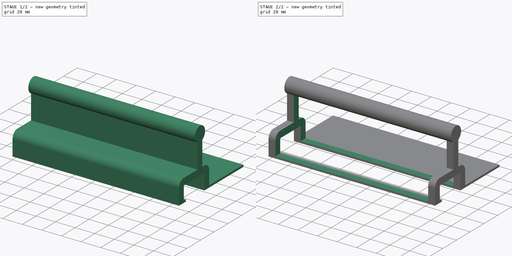
[diagram: build sequence overview — one tinted view per stage of 2, left to right]
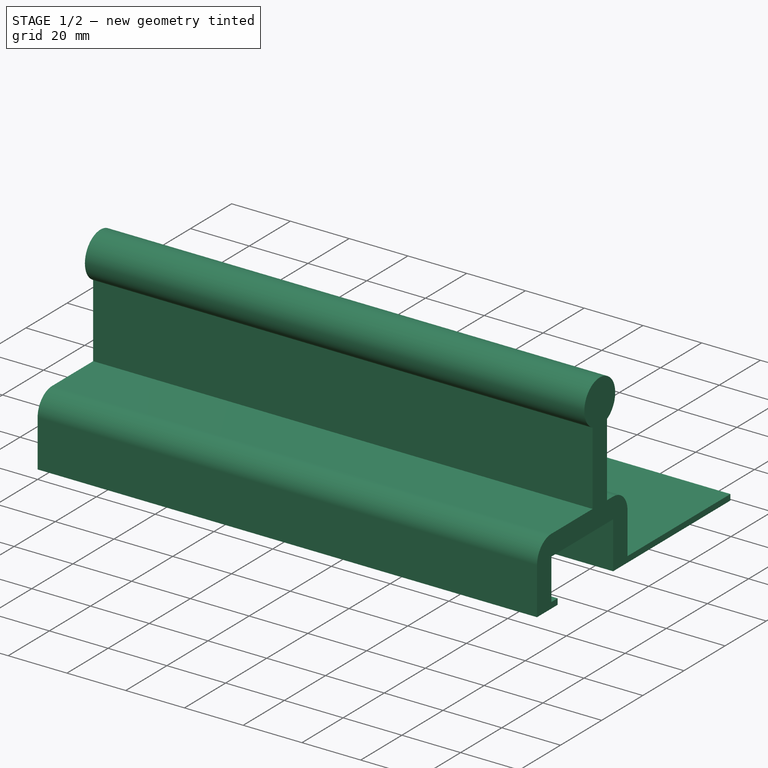
[diagram: stage 1 of 2 — iso view after this stage's code; geometry added in this stage tinted green]
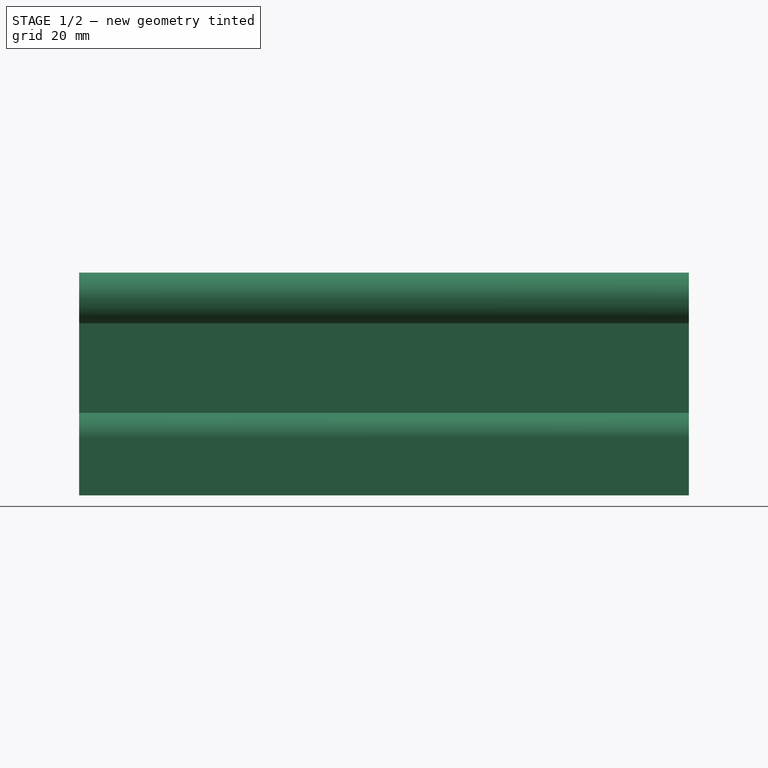
[diagram: stage 1 of 2 — front view after this stage's code; geometry added in this stage tinted green]
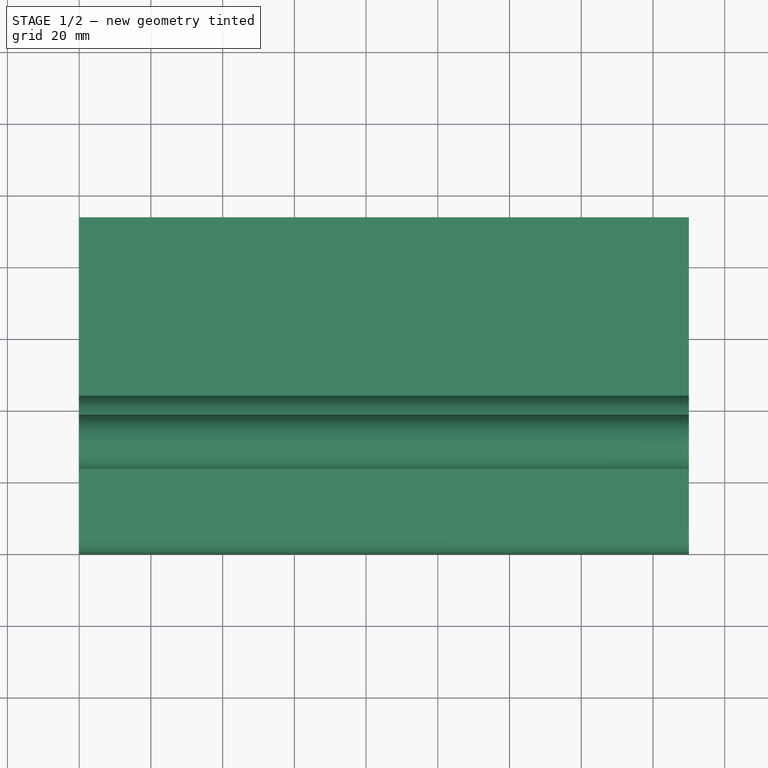
[diagram: stage 1 of 2 — top view after this stage's code; geometry added in this stage tinted green]
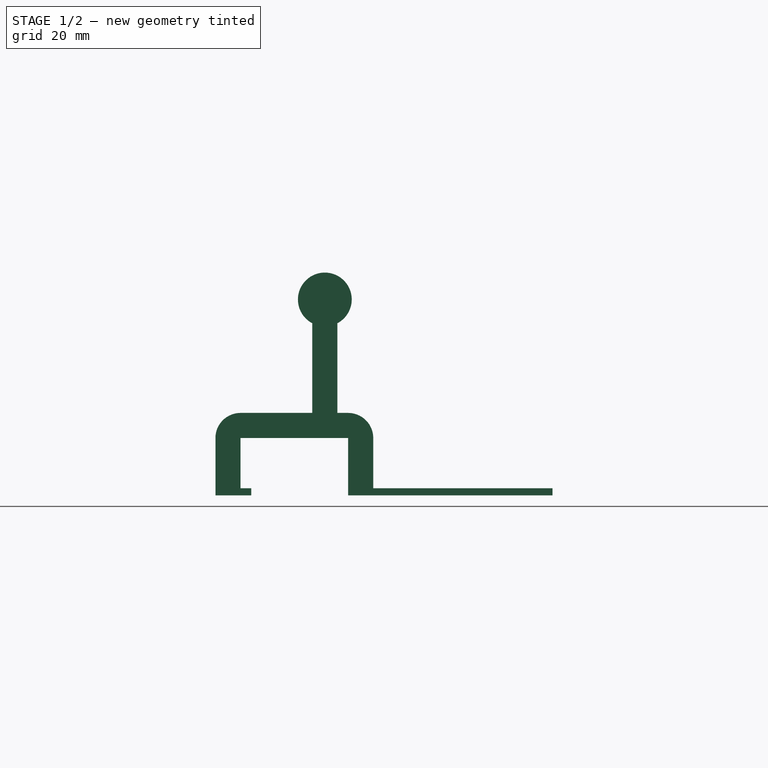
[diagram: stage 1 of 2 — right view after this stage's code; geometry added in this stage tinted green]
FCSTD DOCUMENT  (FreeCAD 1.0R38642 (Git))
Label: monitor-birdperch
License: All rights reserved
LicenseURL: http://en.wikipedia.org/wiki/All_rights_reserved
objects: Sketcher::SketchObject×2, Spreadsheet::Sheet×1, PartDesign::Pad×1, PartDesign::Pocket×1, PartDesign::Body×1
note: 11 computed .brp shape members not serialized (recipe doc carries the construction recipe); baked Part::Feature solids carry a one-line shape summary decoded from their .brp

FEATURE [Spreadsheet::Sheet] Spreadsheet  label="dimensions"
  cells = A1='monitor thickness; B1(monitor_thickness)==30 mm; A2='frame height; B2(frame_height)==19 mm; A3='perch width; B3(perch_width)==170 mm; A4='beam thickness; B4(beam_thickness)==7 mm; A5='stick diameter; B5(stick_diameter)==15 mm; A6='plateau size; B6(plateau_size)==50 mm; A7='perch height; B7(perch_height)==25 mm
FEATURE [Sketcher::SketchObject] Sketch
  ArcFitTolerance = 0
  AttachmentSupport = -> [YZ_Plane]
  FullyConstrained = true
  MakeInternals = false
  MapMode = 5
  Placement = pos=(0,0,0) rot=(0.57735,0.57735,0.57735;2.0944rad)
  expr: Constraints[29] = <<dimensions>>.monitor_thickness
  expr: Constraints[30] = 14 mm
  expr: Constraints[32] = <<dimensions>>.beam_thickness
  expr: Constraints[34] = <<dimensions>>.beam_thickness
  expr: Constraints[38] = <<dimensions>>.stick_diameter
  expr: Constraints[39] = <<dimensions>>.plateau_size
  expr: Constraints[47] = <<dimensions>>.beam_thickness
  expr: Constraints[50] = <<dimensions>>.perch_height
  sketch-geometry (19):
    g0: LineSegment StartX=7 StartY=0 StartZ=0 EndX=27 EndY=0 EndZ=0
    g1: LineSegment StartX=27 StartY=0 StartZ=0 EndX=27 EndY=25 EndZ=0
    g2: LineSegment StartX=34 StartY=25 StartZ=0 EndX=34 EndY=0 EndZ=0
    g3: LineSegment StartX=34 StartY=0 StartZ=0 EndX=37 EndY=0 EndZ=0
    g4: LineSegment StartX=44 StartY=-7 StartZ=0 EndX=44 EndY=-21 EndZ=0
    g5: LineSegment StartX=44 StartY=-21 StartZ=0 EndX=94 EndY=-21 EndZ=0
    g6: LineSegment StartX=94 StartY=-21 StartZ=0 EndX=94 EndY=-23 EndZ=0
    g7: LineSegment StartX=94 StartY=-23 StartZ=0 EndX=37 EndY=-23 EndZ=0
    g8: LineSegment StartX=37 StartY=-23 StartZ=0 EndX=37 EndY=-7 EndZ=0
    g9: LineSegment StartX=37 StartY=-7 StartZ=0 EndX=7 EndY=-7 EndZ=0
    g10: LineSegment StartX=7 StartY=-7 StartZ=0 EndX=7 EndY=-21 EndZ=0
    g11: LineSegment StartX=7 StartY=-21 StartZ=0 EndX=10 EndY=-21 EndZ=0
    g12: LineSegment StartX=10 StartY=-21 StartZ=0 EndX=10 EndY=-23 EndZ=0
    g13: ArcOfCircle CenterX=30.5 CenterY=31.6332 CenterZ=0 NormalX=0 NormalY=0 NormalZ=1 AngleXU=0 Radius=7.5 StartAngle=5.19791 EndAngle=10.5101
    g14: LineSegment StartX=10 StartY=-23 StartZ=0 EndX=0 EndY=-23 EndZ=0
    g15: LineSegment StartX=0 StartY=-23 StartZ=0 EndX=-2.4e-15 EndY=-7 EndZ=0
    g16: ArcOfCircle CenterX=37 CenterY=-7 CenterZ=0 NormalX=0 NormalY=0 NormalZ=1 AngleXU=0 Radius=7 StartAngle=0 EndAngle=1.5708
    g17: ArcOfCircle CenterX=7 CenterY=-7 CenterZ=0 NormalX=0 NormalY=0 NormalZ=1 AngleXU=0 Radius=7 StartAngle=1.5708 EndAngle=3.14159
    g18: GeomPoint [constr] X=30.5 Y=0 Z=0
  constraints (52):
    c: PointOnObject(g0,g-1)
    c: Coincident(g0,g1)
    c: Vertical(g1)
    c: PointOnObject(g2,g-1)
    c: Vertical(g2)
    c: Coincident(g2,g3)
    c: Vertical(g4)
    c: Coincident(g4,g5)
    c: Horizontal(g5)
    c: Coincident(g5,g6)
    c: Coincident(g6,g7)
    c: Horizontal(g7)
    c: Coincident(g7,g8)
    c: Vertical(g8)
    c: Coincident(g8,g9)
    c: Horizontal(g9)
    c: Coincident(g9,g10)
    c: Vertical(g10)
    c: Coincident(g10,g11)
    c: Coincident(g11,g12)
    c: Horizontal(g11)
    c: Vertical(g12)
    c: Vertical(g6)
    c: Horizontal(g12,g7)
    c: Coincident(g12,g14)
    c: PointOnObject(g14,g-2)
    c: Horizontal(g14)
    c: Coincident(g14,g15)
    c: Horizontal(g4,g11)
    c: DistanceX(g9,g9) = 30
    c: DistanceY(g10,g10) = 14
    c: DistanceY(g6,g6) = 2
    c: DistanceX(g14,g10) = 7
    c: DistanceX(g10,g11) = 3
    c: DistanceX(g7,g4) = 7
    c: Coincident(g13,g2)
    c: Coincident(g1,g13)
    c: Horizontal(g2,g1)
    c: Diameter(g13) = 15
    c: DistanceX(g5,g5) = 50
    c: Tangent(g4,g16) = 1.5708
    c: Tangent(g3,g16) = 1.5708
    c: Tangent(g0,g17) = 1.5708
    c: Tangent(g15,g17) = 1.5708
    c: PointOnObject(g3,g-1)
    c: PointOnObject(g0,g-1)
    c: Coincident(g16,g8)
    c: DistanceX(g0,g2) = 7
    c: Coincident(g17,g9)
    c: Symmetric(g2,g0,g18)
    c: DistanceY(g1,g1) = 25
    c: DistanceX(g2,g3) = 3
FEATURE [PartDesign::Pad] Pad
  Direction = (1,0,0)
  Length = 170
  Length2 = 10
  Placement = pos=(0,0,0) rot=(0.57735,0.57735,0.57735;2.0944rad)
  Profile = -> Sketch
  ReferenceAxis = -> Sketch [N_Axis]
  Suppressed = false
  Type = 0
  expr: Length = <<dimensions>>.perch_width
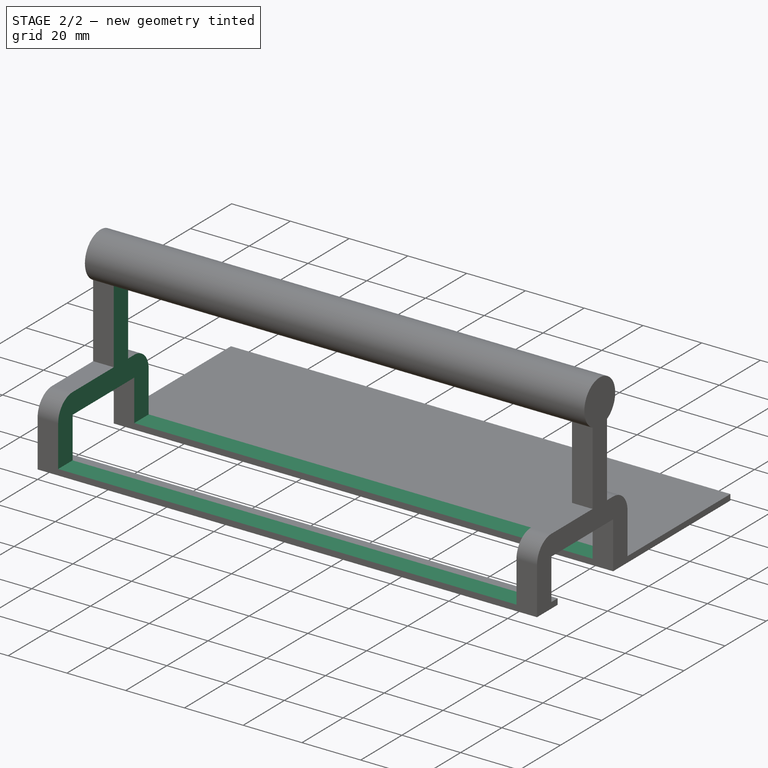
[diagram: stage 2 of 2 — iso view after this stage's code; geometry added in this stage tinted green]
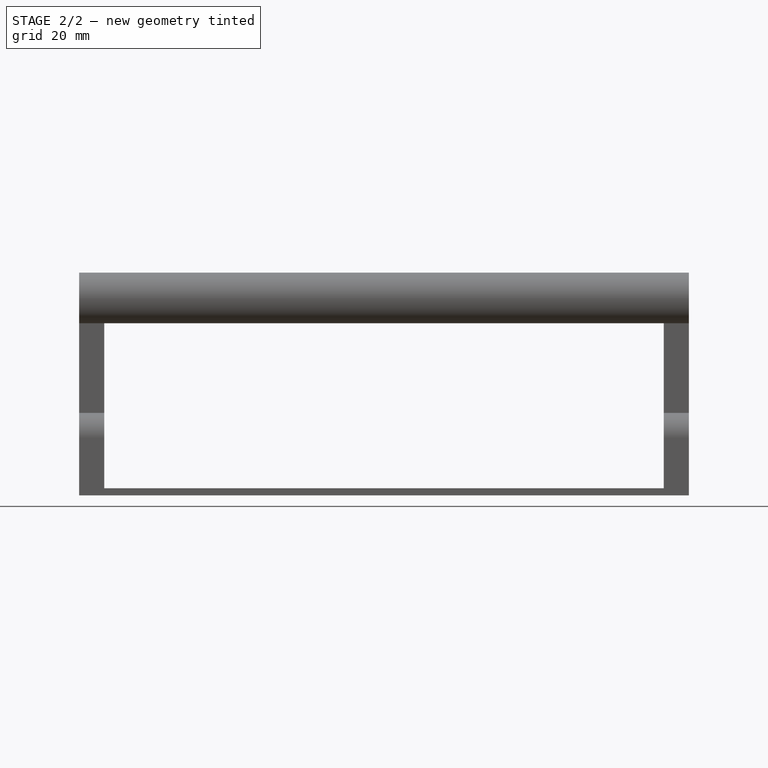
[diagram: stage 2 of 2 — front view after this stage's code; geometry added in this stage tinted green]
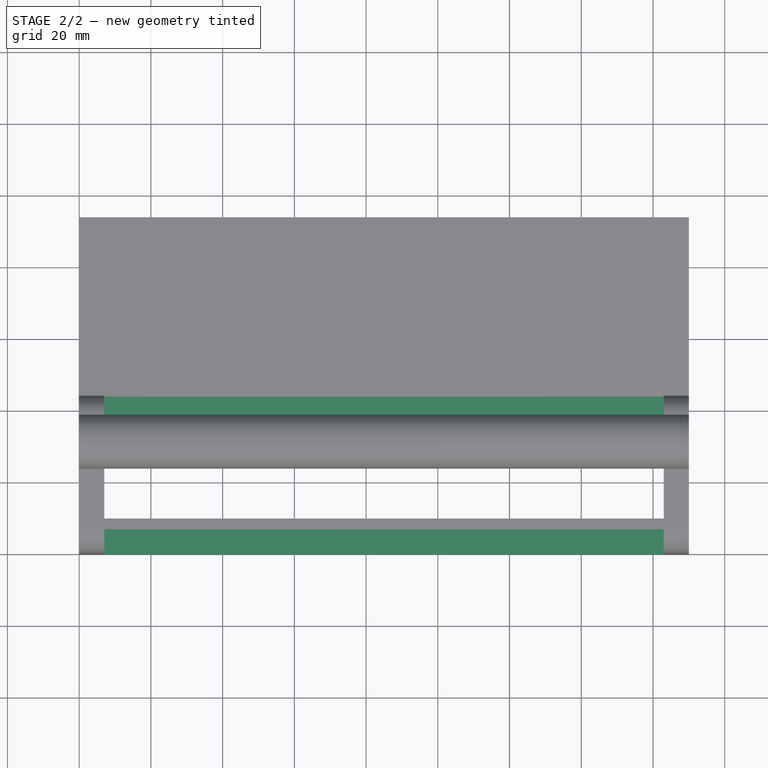
[diagram: stage 2 of 2 — top view after this stage's code; geometry added in this stage tinted green]
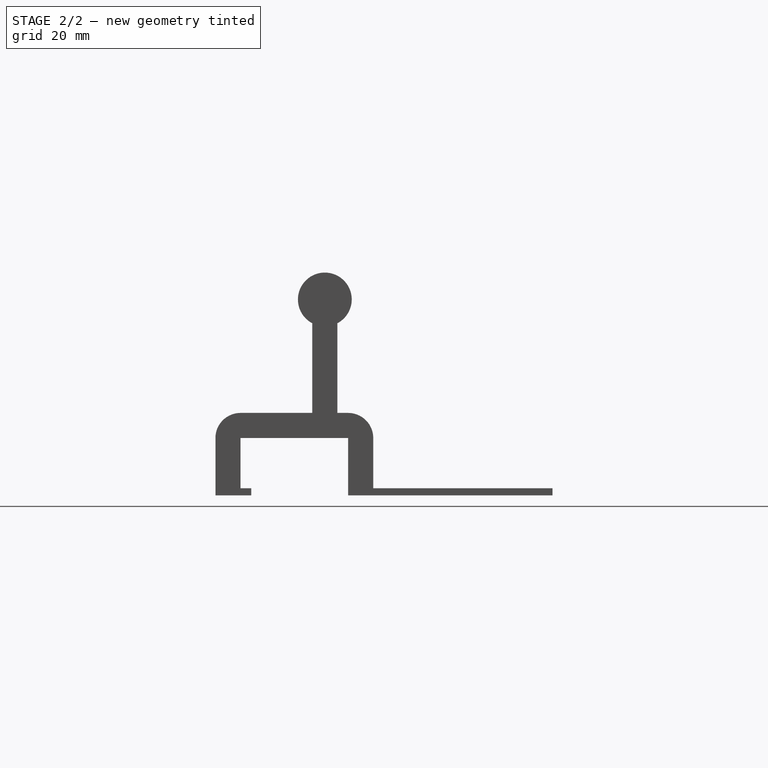
[diagram: stage 2 of 2 — right view after this stage's code; geometry added in this stage tinted green]
FEATURE [Sketcher::SketchObject] Sketch001
  ArcFitTolerance = 0
  AttachmentSupport = -> [Pad]
  ExternalGeometry = -> [Pad]
  FullyConstrained = true
  MakeInternals = false
  MapMode = 5
  Placement = pos=(9.8e-15,44,-4.9e-15) rot=(0.57735,0.57735,0.57735;4.18879rad)
  expr: Constraints[8] = <<dimensions>>.beam_thickness
  expr: Constraints[9] = <<dimensions>>.beam_thickness
  sketch-geometry (4):
    g0: LineSegment StartX=-21 StartY=163 StartZ=0 EndX=25 EndY=163 EndZ=0
    g1: LineSegment StartX=25 StartY=163 StartZ=0 EndX=25 EndY=7 EndZ=0
    g2: LineSegment StartX=25 StartY=7 StartZ=0 EndX=-21 EndY=7 EndZ=0
    g3: LineSegment StartX=-21 StartY=7 StartZ=0 EndX=-21 EndY=163 EndZ=0
  constraints (12):
    c: Coincident(g0,g1)
    c: Coincident(g1,g2)
    c: Coincident(g2,g3)
    c: Coincident(g3,g0)
    c: Horizontal(g0)
    c: Horizontal(g2)
    c: Vertical(g1)
    c: Vertical(g3)
    c: DistanceY(g-4,g1) = 7
    c: DistanceY(g0,g-3) = 7
    c: Vertical(g0,g-3)
    c: Vertical(g1,g-4)
FEATURE [PartDesign::Pocket] Pocket
  BaseFeature = -> Pad
  Direction = (0,-1,0)
  Length = 5
  Length2 = 5
  Placement = pos=(0,0,0) rot=(0.57735,0.57735,0.57735;2.0944rad)
  Profile = -> Sketch001
  ReferenceAxis = -> Sketch001 [N_Axis]
  Suppressed = false
  Type = 1
FEATURE [PartDesign::Body] Body  label="perch"
  AllowCompound = false
  Group = -> [Sketch,Pad,Sketch001,Pocket]
  Origin = -> Origin
  Tip = -> Pocket
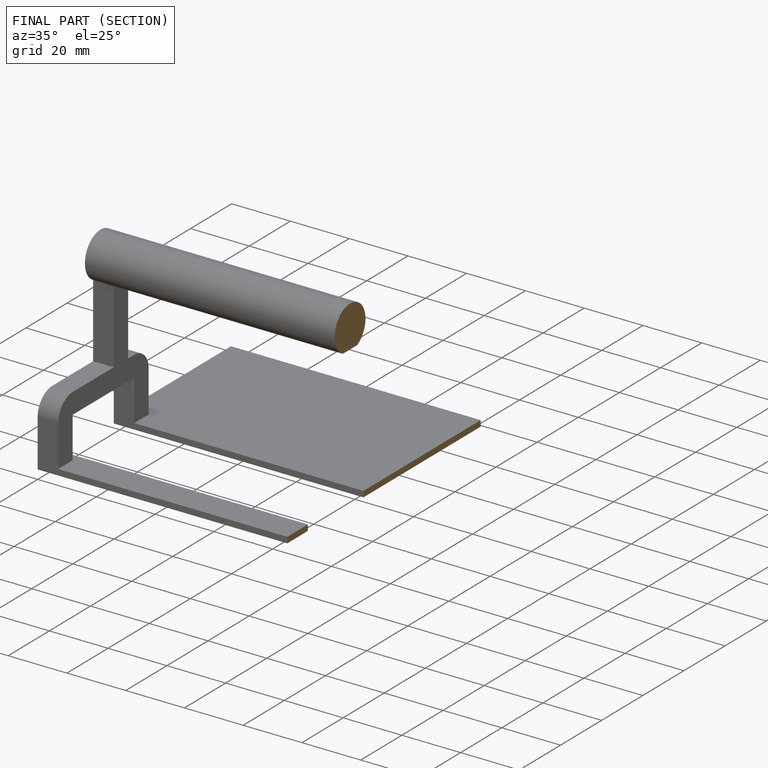
[diagram: finished part — half-section view (interior)]
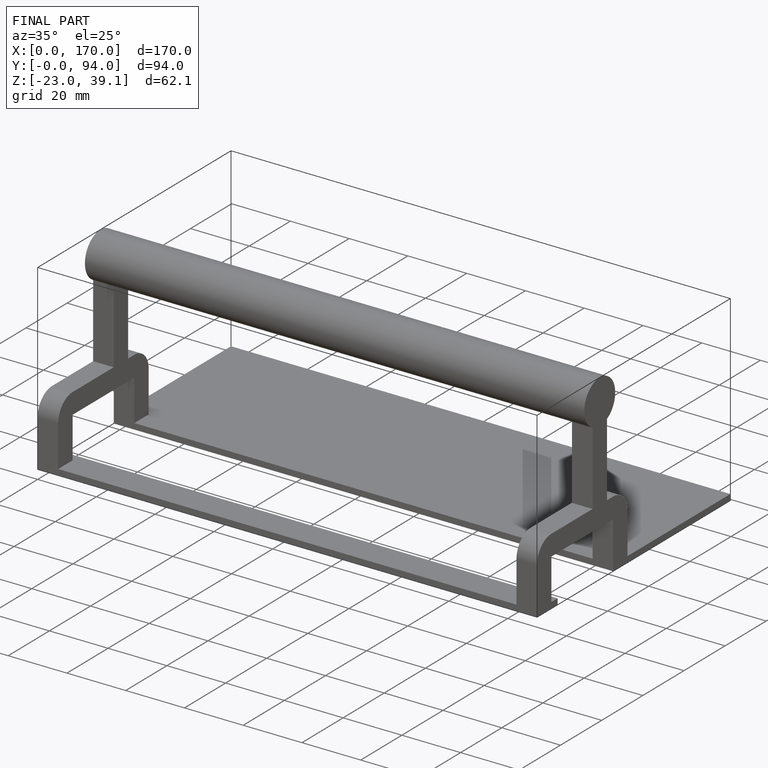
[diagram: finished part — iso view with bounding-box wireframe]
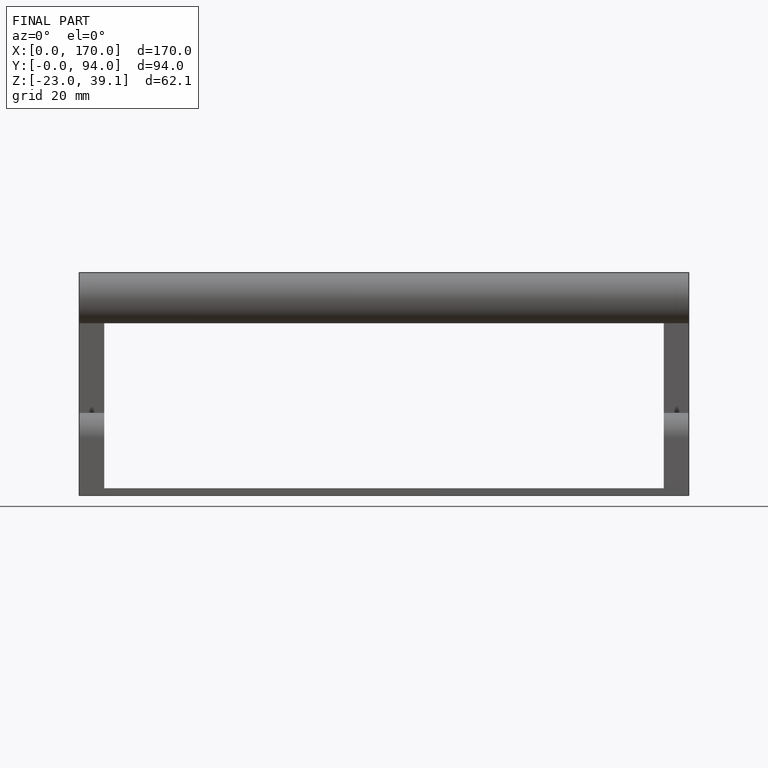
[diagram: finished part — front view with bounding-box wireframe]
